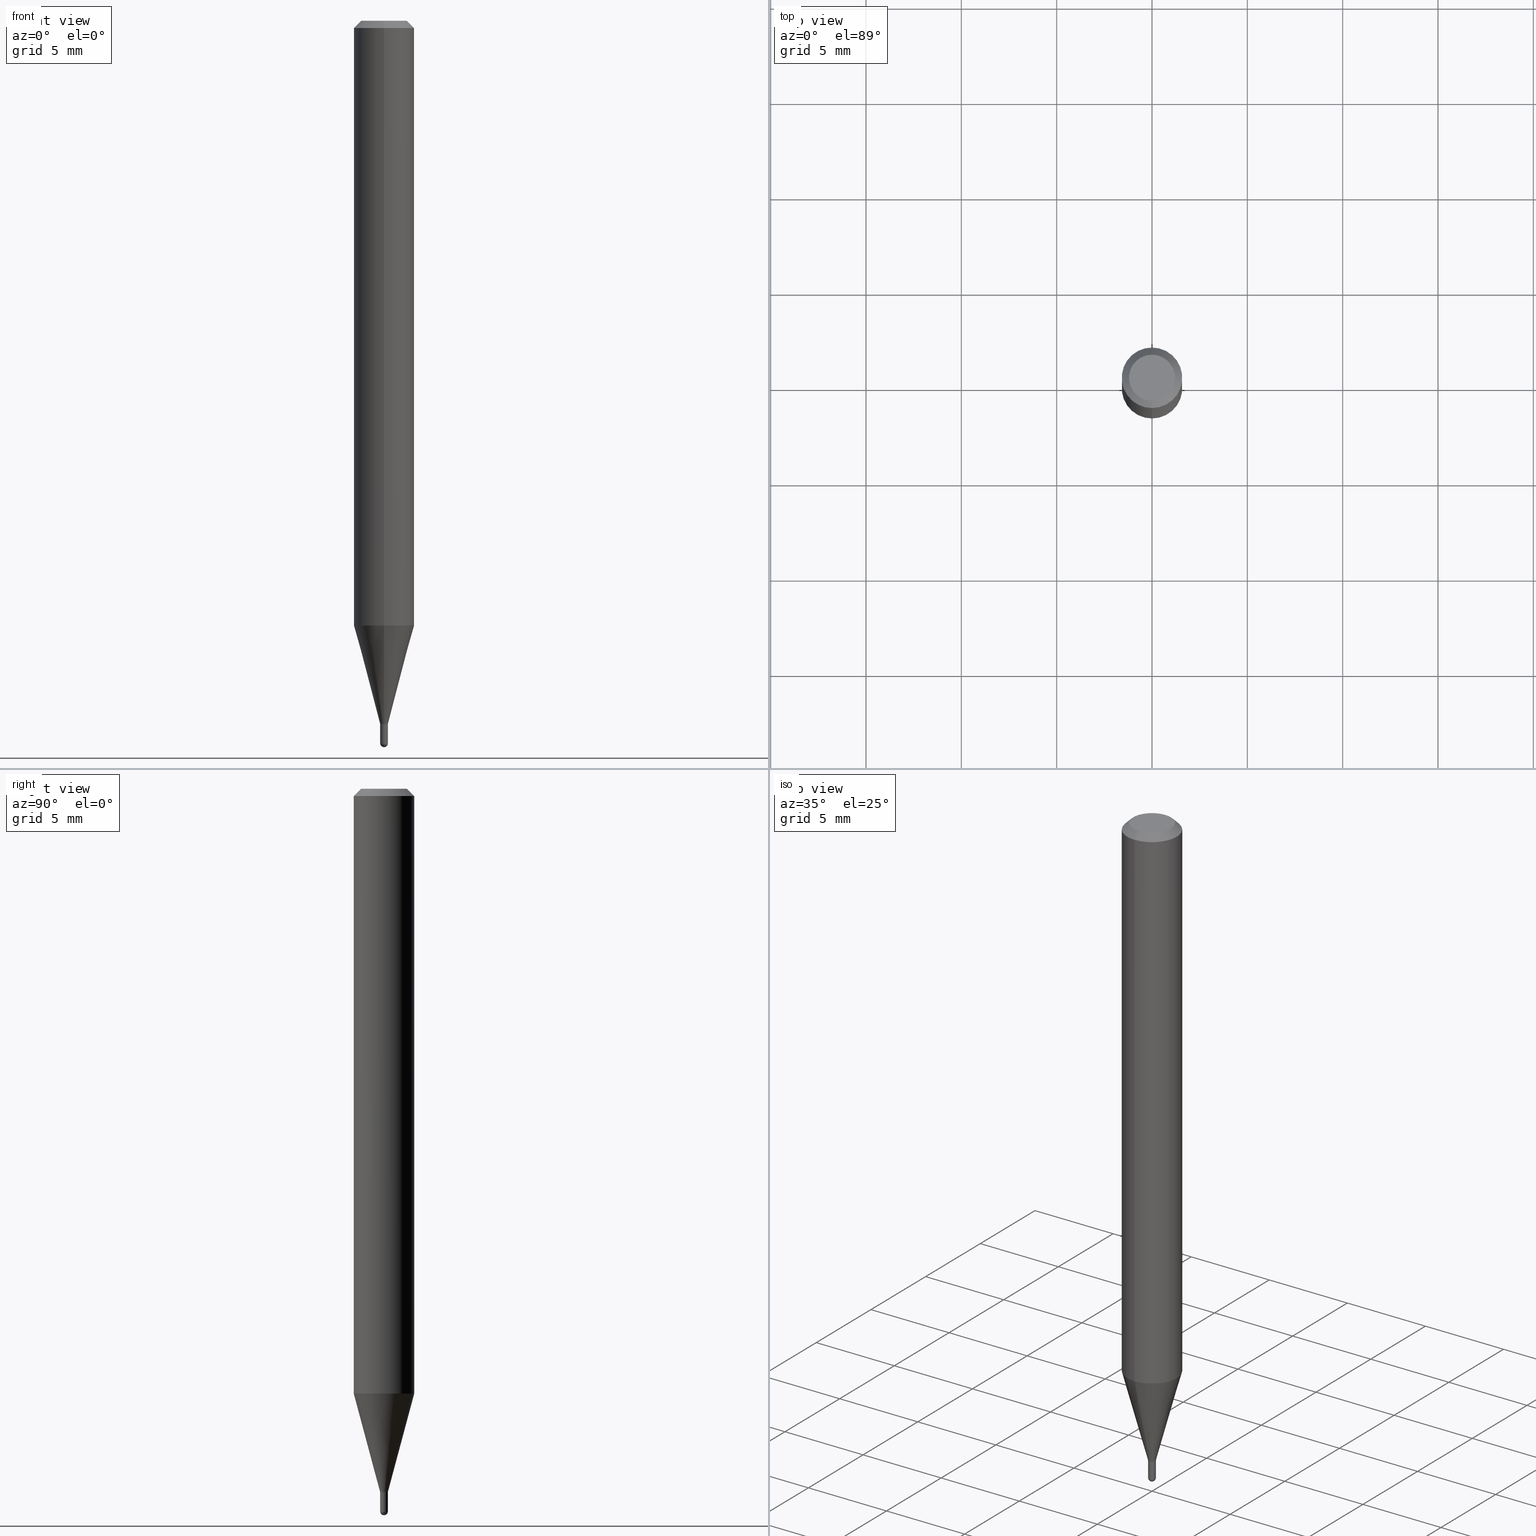
[diagram: canonical four-view strip — front | top / right | iso, engineering-drawing reading convention]
A machine part, canonical four-view strip (front | top / right | iso — engineering-drawing reading convention). The complete STEP part file that produces these views, byte-faithful:
ISO-10303-21;
HEADER;
FILE_DESCRIPTION (( 'STEP AP203' ),
    '1' );
FILE_NAME ('04394.STEP',
    '2024-03-08T19:08:10',
    ( '' ),
    ( '' ),
    'SwSTEP 2.0',
    'SolidWorks 2023',
    '' );
FILE_SCHEMA (( 'CONFIG_CONTROL_DESIGN' ));
ENDSEC;

DATA;
#1 = APPLICATION_PROTOCOL_DEFINITION ( 'international standard', 'config_control_design', 1994, #415 ) ;
#2 = DIRECTION ( 'NONE',  ( -6.982962677686266711E-15, -1.000000000000000000, 3.491497944111267737E-15 ) ) ;
#3 = LENGTH_MEASURE_WITH_UNIT ( LENGTH_MEASURE( 0.02539999999999999897 ), #319 );
#4 = CIRCLE ( 'NONE', #316, 0.008000000000000197925 ) ;
#5 = CYLINDRICAL_SURFACE ( 'NONE', #420, 0.06250000000000000000 ) ;
#6 = CC_DESIGN_APPROVAL ( #64, ( #494 ) ) ;
#7 = EDGE_CURVE ( 'NONE', #357, #36, #4, .T. ) ;
#8 = ORIENTED_EDGE ( 'NONE', *, *, #148, .F. ) ;
#9 = EDGE_LOOP ( 'NONE', ( #464, #42, #355, #246 ) ) ;
#10 = DIRECTION ( 'NONE',  ( -2.445457210788381726E-29, 3.491497944111267737E-15, 1.000000000000000000 ) ) ;
#11 = AXIS2_PLACEMENT_3D ( 'NONE', #362, #320, #483 ) ;
#12 = AXIS2_PLACEMENT_3D ( 'NONE', #393, #147, #184 ) ;
#13 = LOCAL_TIME ( 14, 8, 10.00000000000000000, #426 ) ;
#14 = CARTESIAN_POINT ( 'NONE',  ( 3.053405774632062689E-29, -4.359495614003555810E-15, -1.248603230987503920 ) ) ;
#15 = DIRECTION ( 'NONE',  ( -6.982962677686265922E-15, -1.000000000000000000, 3.491497944111267737E-15 ) ) ;
#16 = MECHANICAL_CONTEXT ( 'NONE', #398, 'mechanical' ) ;
#17 = CARTESIAN_POINT ( 'NONE',  ( 5.684341886080747371E-17, 0.007999999999999925573, -2.793198355288988207E-17 ) ) ;
#18 = ORIENTED_EDGE ( 'NONE', *, *, #430, .F. ) ;
#19 = CARTESIAN_POINT ( 'NONE',  ( 3.647955325796880596E-29, -5.210269874993290915E-15, -1.491999999999999993 ) ) ;
#20 = ORIENTED_EDGE ( 'NONE', *, *, #369, .T. ) ;
#21 = AXIS2_PLACEMENT_3D ( 'NONE', #457, #103, #422 ) ;
#22 = EDGE_CURVE ( 'NONE', #156, #403, #121, .T. ) ;
#23 = DIRECTION ( 'NONE',  ( -2.445468806185136877E-29, 3.491481338843145188E-15, 1.000000000000000000 ) ) ;
#24 = ORIENTED_EDGE ( 'NONE', *, *, #148, .T. ) ;
#25 = PERSON_AND_ORGANIZATION ( #286, #292 ) ;
#26 = DIRECTION ( 'NONE',  ( 4.937700262164548042E-15, 0.7071067811865451302, -0.7071067811865499042 ) ) ;
#27 = EDGE_CURVE ( 'NONE', #440, #78, #480, .T. ) ;
#28 = FACE_OUTER_BOUND ( 'NONE', #177, .T. ) ;
#29 = VERTEX_POINT ( 'NONE', #47 ) ;
#30 = VECTOR ( 'NONE', #85, 39.37007874015748143 ) ;
#31 = VECTOR ( 'NONE', #213, 39.37007874015748143 ) ;
#32 = DIRECTION ( 'NONE',  ( -6.982962677686265922E-15, -1.000000000000000000, 3.483106191921935554E-15 ) ) ;
#33 = ORIENTED_EDGE ( 'NONE', *, *, #92, .F. ) ;
#34 = EDGE_CURVE ( 'NONE', #36, #38, #83, .T. ) ;
#35 = CARTESIAN_POINT ( 'NONE',  ( 3.648639458828225116E-29, -5.209290157553974120E-15, -1.492000000000000437 ) ) ;
#36 = VERTEX_POINT ( 'NONE', #321 ) ;
#37 = CARTESIAN_POINT ( 'NONE',  ( -0.008000000000000000167, -5.082617111916303545E-15, -1.452000000000000179 ) ) ;
#38 = VERTEX_POINT ( 'NONE', #240 ) ;
#39 = CIRCLE ( 'NONE', #291, 0.007500000000000001457 ) ;
#40 = CARTESIAN_POINT ( 'NONE',  ( -0.008000000000000000167, -5.082617111916303545E-15, -1.492000000000000437 ) ) ;
#41 = AXIS2_PLACEMENT_3D ( 'NONE', #473, #305, #354 ) ;
#42 = ORIENTED_EDGE ( 'NONE', *, *, #280, .T. ) ;
#43 = DIRECTION ( 'NONE',  ( -6.982962677686265922E-15, -1.000000000000000000, 0.000000000000000000 ) ) ;
#44 = DIRECTION ( 'NONE',  ( -6.982962677686265922E-15, -1.000000000000000000, 3.491497944111267737E-15 ) ) ;
#45 = DATE_TIME_ROLE ( 'creation_date' ) ;
#46 = AXIS2_PLACEMENT_3D ( 'NONE', #195, #134, #275 ) ;
#47 = CARTESIAN_POINT ( 'NONE',  ( -4.364351673553612983E-16, -0.06250000000000438538, -1.248603230987503698 ) ) ;
#48 = EDGE_CURVE ( 'NONE', #429, #350, #409, .T. ) ;
#49 = ORIENTED_EDGE ( 'NONE', *, *, #363, .T. ) ;
#50 = CARTESIAN_POINT ( 'NONE',  ( 0.000000000000000000, 0.000000000000000000, 0.000000000000000000 ) ) ;
#51 = DIRECTION ( 'NONE',  ( -2.445468806185136597E-29, 3.491481338843145583E-15, 1.000000000000000000 ) ) ;
#52 = ADVANCED_FACE ( 'NONE', ( #242 ), #5, .T. ) ;
#53 = AXIS2_PLACEMENT_3D ( 'NONE', #19, #450, #250 ) ;
#54 = MANIFOLD_SOLID_BREP ( 'Body-Move/Copy2[2]', #150 ) ;
#55 = LINE ( 'NONE', #249, #383 ) ;
#56 = PERSON_AND_ORGANIZATION ( #286, #292 ) ;
#57 = CARTESIAN_POINT ( 'NONE',  ( -4.364351673553912750E-16, -0.06250000000000005551, -0.01499999999999984852 ) ) ;
#58 = ADVANCED_FACE ( 'NONE', ( #364 ), #359, .T. ) ;
#59 = MANIFOLD_SOLID_BREP ( 'Body-Move/Copy2[1]', #228 ) ;
#60 = ORIENTED_EDGE ( 'NONE', *, *, #34, .F. ) ;
#61 = VECTOR ( 'NONE', #98, 39.37007874015748143 ) ;
#62 = APPROVAL_STATUS ( 'not_yet_approved' ) ;
#63 = SECURITY_CLASSIFICATION ( '', '', #304 ) ;
#64 = APPROVAL ( #81, 'UNSPECIFIED' ) ;
#65 = CARTESIAN_POINT ( 'NONE',  ( -5.237222008261149419E-17, -0.007500000000005071187, -1.452000000000000624 ) ) ;
#66 = ORIENTED_EDGE ( 'NONE', *, *, #330, .T. ) ;
#67 = DIRECTION ( 'NONE',  ( -2.445457210788381726E-29, 3.491497944111267737E-15, 1.000000000000000000 ) ) ;
#68 = ORIENTED_EDGE ( 'NONE', *, *, #100, .T. ) ;
#69 = DIRECTION ( 'NONE',  ( -6.982962677686264344E-15, -1.000000000000000000, 0.000000000000000000 ) ) ;
#70 = ORIENTED_EDGE ( 'NONE', *, *, #76, .T. ) ;
#71 = CALENDAR_DATE ( 2024, 8, 3 ) ;
#72 = CIRCLE ( 'NONE', #324, 0.008000000000000014044 ) ;
#73 = CIRCLE ( 'NONE', #205, 0.008000000000000000167 ) ;
#74 = DIRECTION ( 'NONE',  ( -6.982962677686265922E-15, -1.000000000000000000, 3.491497944111267737E-15 ) ) ;
#75 = ORIENTED_EDGE ( 'NONE', *, *, #451, .F. ) ;
#76 = EDGE_CURVE ( 'NONE', #403, #156, #127, .T. ) ;
#77 = DIRECTION ( 'NONE',  ( -6.982962677686266711E-15, -1.000000000000000000, 0.000000000000000000 ) ) ;
#78 = VERTEX_POINT ( 'NONE', #405 ) ;
#79 = LINE ( 'NONE', #143, #105 ) ;
#80 = EDGE_LOOP ( 'NONE', ( #233, #70 ) ) ;
#81 = APPROVAL_STATUS ( 'not_yet_approved' ) ;
#82 = ORIENTED_EDGE ( 'NONE', *, *, #22, .F. ) ;
#83 = LINE ( 'NONE', #322, #30 ) ;
#84 = APPROVAL_DATE_TIME ( #478, #407 ) ;
#85 = DIRECTION ( 'NONE',  ( -2.445457210788381726E-29, 3.491497944111267737E-15, 1.000000000000000000 ) ) ;
#86 = EDGE_CURVE ( 'NONE', #311, #440, #39, .T. ) ;
#87 = DIMENSIONAL_EXPONENTS ( 1.000000000000000000, 0.000000000000000000, 0.000000000000000000, 0.000000000000000000, 0.000000000000000000, 0.000000000000000000, 0.000000000000000000 ) ;
#88 = VECTOR ( 'NONE', #302, 39.37007874015748854 ) ;
#89 = CYLINDRICAL_SURFACE ( 'NONE', #165, 0.008000000000000000167 ) ;
#90 = EDGE_CURVE ( 'NONE', #328, #171, #72, .T. ) ;
#91 = DIRECTION ( 'NONE',  ( -2.445457210788381726E-29, 3.491497944111267737E-15, 1.000000000000000000 ) ) ;
#92 = EDGE_CURVE ( 'NONE', #394, #29, #104, .T. ) ;
#93 = CARTESIAN_POINT ( 'NONE',  ( -0.008000000000000000167, 5.684341886080801605E-17, -3.935148072203924667E-31 ) ) ;
#94 = ADVANCED_FACE ( 'NONE', ( #279 ), #89, .T. ) ;
#95 = DIRECTION ( 'NONE',  ( -2.445457210788381726E-29, 3.491497944111267737E-15, 1.000000000000000000 ) ) ;
#96 = CONICAL_SURFACE ( 'NONE', #395, 0.007500000000000001457, 0.7853981633969275844 ) ;
#97 = PERSON_AND_ORGANIZATION_ROLE ( 'design_owner' ) ;
#98 = DIRECTION ( 'NONE',  ( -2.445457210788381726E-29, 3.491497944111267737E-15, 1.000000000000000000 ) ) ;
#99 = EDGE_LOOP ( 'NONE', ( #146, #502, #113, #266 ) ) ;
#100 = EDGE_CURVE ( 'NONE', #149, #209, #458, .T. ) ;
#101 = DIRECTION ( 'NONE',  ( -2.445457210788381165E-29, 3.491497944111267737E-15, 1.000000000000000000 ) ) ;
#102 = ADVANCED_FACE ( 'NONE', ( #325 ), #141, .T. ) ;
#103 = DIRECTION ( 'NONE',  ( -2.445457210788381726E-29, 3.491497944111267737E-15, 1.000000000000000000 ) ) ;
#104 = CIRCLE ( 'NONE', #272, 0.06250000000000000000 ) ;
#105 = VECTOR ( 'NONE', #118, 39.37007874015747433 ) ;
#106 = DIRECTION ( 'NONE',  ( -4.851104656540964275E-15, -0.7071067811865500152, -0.7071067811865450192 ) ) ;
#107 = ADVANCED_BREP_SHAPE_REPRESENTATION ( '04394', ( #59, #54, #273 ), #367 ) ;
#108 = FACE_OUTER_BOUND ( 'NONE', #435, .T. ) ;
#109 = ORIENTED_EDGE ( 'NONE', *, *, #178, .F. ) ;
#110 = PERSON_AND_ORGANIZATION ( #286, #292 ) ;
#111 = CARTESIAN_POINT ( 'NONE',  ( 3.668185816182588791E-31, -5.237246916166924532E-17, -0.01500000000000006710 ) ) ;
#112 = ADVANCED_FACE ( 'NONE', ( #293 ), #222, .T. ) ;
#113 = ORIENTED_EDGE ( 'NONE', *, *, #208, .T. ) ;
#114 = AXIS2_PLACEMENT_3D ( 'NONE', #207, #397, #162 ) ;
#115 = AXIS2_PLACEMENT_3D ( 'NONE', #265, #508, #77 ) ;
#116 = DIRECTION ( 'NONE',  ( -2.445457210788381726E-29, 3.491497944111267737E-15, 1.000000000000000000 ) ) ;
#117 = EDGE_LOOP ( 'NONE', ( #231, #347, #49, #33 ) ) ;
#118 = DIRECTION ( 'NONE',  ( 1.839019923739651986E-15, 0.2588190451025322303, 0.9659258262890653146 ) ) ;
#119 = ORIENTED_EDGE ( 'NONE', *, *, #215, .T. ) ;
#120 = ORIENTED_EDGE ( 'NONE', *, *, #86, .T. ) ;
#121 = CIRCLE ( 'NONE', #175, 0.04749999999999999362 ) ;
#122 = COORDINATED_UNIVERSAL_TIME_OFFSET ( 5, 0, .BEHIND. ) ;
#123 = CONICAL_SURFACE ( 'NONE', #12, 0.008000000000000197925, 0.2617993877991577345 ) ;
#124 = CARTESIAN_POINT ( 'NONE',  ( 5.329070518204302303E-17, 0.007499999999994930860, -1.452000000000000624 ) ) ;
#125 = DIRECTION ( 'NONE',  ( -2.445457210788381726E-29, 3.491497944111267737E-15, 1.000000000000000000 ) ) ;
#126 = DIRECTION ( 'NONE',  ( -6.982962677686265922E-15, -1.000000000000000000, 4.370956789862821150E-15 ) ) ;
#127 = CIRCLE ( 'NONE', #11, 0.04749999999999999362 ) ;
#128 = CIRCLE ( 'NONE', #166, 0.008000000000000000167 ) ;
#129 = CARTESIAN_POINT ( 'NONE',  ( 1.601760908168073716E-45, -2.286911786129214863E-31, -6.549944530216040568E-17 ) ) ;
#130 = CC_DESIGN_SECURITY_CLASSIFICATION ( #63, ( #494 ) ) ;
#131 = DIRECTION ( 'NONE',  ( -2.445457210788381726E-29, 3.491497944111267737E-15, 1.000000000000000000 ) ) ;
#132 = CARTESIAN_POINT ( 'NONE',  ( 0.000000000000000000, 0.000000000000000000, 0.000000000000000000 ) ) ;
#133 = DIRECTION ( 'NONE',  ( -6.982962677686265922E-15, -1.000000000000000000, 0.000000000000000000 ) ) ;
#134 = DIRECTION ( 'NONE',  ( 2.445457210788381726E-29, -3.491497944111267737E-15, -1.000000000000000000 ) ) ;
#135 = PLANE ( 'NONE',  #332 ) ;
#136 = AXIS2_PLACEMENT_3D ( 'NONE', #111, #116, #32 ) ;
#137 = CARTESIAN_POINT ( 'NONE',  ( 3.648639458828225116E-29, -5.209290157553974120E-15, -1.492000000000000437 ) ) ;
#138 = APPROVAL_DATE_TIME ( #253, #64 ) ;
#139 = DIRECTION ( 'NONE',  ( -2.445468806185136597E-29, 3.491481338843145583E-15, 1.000000000000000000 ) ) ;
#140 = CARTESIAN_POINT ( 'NONE',  ( 0.008000000000000000167, -5.195324232198600513E-15, -1.492000000000000437 ) ) ;
#141 = CONICAL_SURFACE ( 'NONE', #342, 0.007500000000000001457, 0.7853981633969275844 ) ;
#142 = CIRCLE ( 'NONE', #136, 0.06250000000000000000 ) ;
#143 = CARTESIAN_POINT ( 'NONE',  ( 5.684341886084491995E-17, 0.007999999999995127328, -1.452000000000000179 ) ) ;
#144 = ORIENTED_EDGE ( 'NONE', *, *, #509, .T. ) ;
#145 = CARTESIAN_POINT ( 'NONE',  ( -3.773273898774340269E-16, -0.04749999999999999362, 1.003467070431247921E-16 ) ) ;
#146 = ORIENTED_EDGE ( 'NONE', *, *, #505, .F. ) ;
#147 = DIRECTION ( 'NONE',  ( -2.445457210788381726E-29, 3.491497944111267737E-15, 1.000000000000000000 ) ) ;
#148 = EDGE_CURVE ( 'NONE', #156, #209, #378, .T. ) ;
#149 = VERTEX_POINT ( 'NONE', #57 ) ;
#150 = CLOSED_SHELL ( 'NONE', ( #477, #102, #401, #442, #381, #433, #52, #462, #182, #243, #267, #333 ) ) ;
#151 = AXIS2_PLACEMENT_3D ( 'NONE', #460, #226, #349 ) ;
#152 = FACE_OUTER_BOUND ( 'NONE', #491, .T. ) ;
#153 = ORIENTED_EDGE ( 'NONE', *, *, #308, .T. ) ;
#154 = CC_DESIGN_DATE_AND_TIME_ASSIGNMENT ( #270, #45, ( #386 ) ) ;
#155 = DIRECTION ( 'NONE',  ( -2.445457210788381726E-29, 3.491497944111267737E-15, 1.000000000000000000 ) ) ;
#156 = VERTEX_POINT ( 'NONE', #255 ) ;
#157 = COORDINATED_UNIVERSAL_TIME_OFFSET ( 5, 0, .BEHIND. ) ;
#158 = DIRECTION ( 'NONE',  ( 1.000000000000000000, -6.982962677686211490E-15, 0.000000000000000000 ) ) ;
#159 = CIRCLE ( 'NONE', #411, 0.008000000000000000167 ) ;
#160 =( NAMED_UNIT ( * ) SI_UNIT ( $, .STERADIAN. ) SOLID_ANGLE_UNIT ( ) );
#161 = AXIS2_PLACEMENT_3D ( 'NONE', #35, #511, #225 ) ;
#162 = DIRECTION ( 'NONE',  ( -6.982962677686265922E-15, -1.000000000000000000, 0.000000000000000000 ) ) ;
#163 = DIRECTION ( 'NONE',  ( -2.445457210788381726E-29, 3.491497944111267737E-15, 1.000000000000000000 ) ) ;
#164 = ORIENTED_EDGE ( 'NONE', *, *, #218, .F. ) ;
#165 = AXIS2_PLACEMENT_3D ( 'NONE', #50, #278, #212 ) ;
#166 = AXIS2_PLACEMENT_3D ( 'NONE', #219, #139, #299 ) ;
#167 = DIRECTION ( 'NONE',  ( -6.982962677686265922E-15, -1.000000000000000000, 3.483106191921935554E-15 ) ) ;
#168 = LOCAL_TIME ( 14, 8, 10.00000000000000000, #496 ) ;
#169 = EDGE_CURVE ( 'NONE', #313, #350, #55, .T. ) ;
#170 = DIRECTION ( 'NONE',  ( -2.445457210788381726E-29, 3.491497944111267737E-15, 1.000000000000000000 ) ) ;
#171 = VERTEX_POINT ( 'NONE', #495 ) ;
#172 = DIRECTION ( 'NONE',  ( 0.000000000000000000, 0.000000000000000000, 1.000000000000000000 ) ) ;
#173 = DIRECTION ( 'NONE',  ( -2.445457210788381726E-29, 3.491497944111267737E-15, 1.000000000000000000 ) ) ;
#174 = LINE ( 'NONE', #17, #188 ) ;
#175 = AXIS2_PLACEMENT_3D ( 'NONE', #129, #131, #2 ) ;
#176 = CIRCLE ( 'NONE', #21, 0.007999999999999653222 ) ;
#177 = EDGE_LOOP ( 'NONE', ( #289, #385, #68, #8 ) ) ;
#178 = EDGE_CURVE ( 'NONE', #388, #171, #159, .T. ) ;
#179 = CARTESIAN_POINT ( 'NONE',  ( -4.364351673553916201E-16, -0.06250000000000000000, 2.182186215069542336E-16 ) ) ;
#180 = CARTESIAN_POINT ( 'NONE',  ( 3.550803870064730798E-29, -5.069655014849561599E-15, -1.452000000000000179 ) ) ;
#181 = DESIGN_CONTEXT ( 'detailed design', #415, 'design' ) ;
#182 = ADVANCED_FACE ( 'NONE', ( #499 ), #135, .F. ) ;
#183 = DATE_AND_TIME ( #465, #168 ) ;
#184 = DIRECTION ( 'NONE',  ( -6.982962677686266711E-15, -1.000000000000000000, 0.000000000000000000 ) ) ;
#185 = ORIENTED_EDGE ( 'NONE', *, *, #90, .F. ) ;
#186 = VECTOR ( 'NONE', #26, 39.37007874015748143 ) ;
#187 = ADVANCED_FACE ( 'NONE', ( #373 ), #288, .T. ) ;
#188 = VECTOR ( 'NONE', #490, 39.37007874015748143 ) ;
#189 = LOCAL_TIME ( 14, 8, 10.00000000000000000, #157 ) ;
#190 = CARTESIAN_POINT ( 'NONE',  ( 3.550820706580818935E-29, -5.069630904000248312E-15, -1.452000000000000179 ) ) ;
#191 = ORIENTED_EDGE ( 'NONE', *, *, #169, .T. ) ;
#192 = CARTESIAN_POINT ( 'NONE',  ( 2.504663143554691632E-16, 0.007999999999995127328, -1.452000000000000179 ) ) ;
#193 = ORIENTED_EDGE ( 'NONE', *, *, #308, .F. ) ;
#194 = CC_DESIGN_PERSON_AND_ORGANIZATION_ASSIGNMENT ( #456, #338, ( #63 ) ) ;
#195 = CARTESIAN_POINT ( 'NONE',  ( 3.668185816182588791E-31, -5.237246916166924532E-17, -0.01500000000000006710 ) ) ;
#196 = VERTEX_POINT ( 'NONE', #300 ) ;
#197 = VECTOR ( 'NONE', #200, 39.37007874015748143 ) ;
#198 = DIRECTION ( 'NONE',  ( -2.445468806185136597E-29, 3.491481338843145583E-15, 1.000000000000000000 ) ) ;
#199 = EDGE_LOOP ( 'NONE', ( #120, #251, #193, #294 ) ) ;
#200 = DIRECTION ( 'NONE',  ( -2.445457210788381726E-29, 3.491497944111267737E-15, 1.000000000000000000 ) ) ;
#201 = CARTESIAN_POINT ( 'NONE',  ( 0.000000000000000000, 0.000000000000000000, 0.000000000000000000 ) ) ;
#202 = DIRECTION ( 'NONE',  ( -2.445457210788381726E-29, 3.491497944111267737E-15, 1.000000000000000000 ) ) ;
#203 = ORIENTED_EDGE ( 'NONE', *, *, #330, .F. ) ;
#204 = CC_DESIGN_DATE_AND_TIME_ASSIGNMENT ( #183, #261, ( #63 ) ) ;
#205 = AXIS2_PLACEMENT_3D ( 'NONE', #230, #198, #307 ) ;
#206 = CALENDAR_DATE ( 2024, 8, 3 ) ;
#207 = CARTESIAN_POINT ( 'NONE',  ( 3.647955325796880596E-29, -5.210269874993290915E-15, -1.491999999999999993 ) ) ;
#208 = EDGE_CURVE ( 'NONE', #29, #149, #408, .T. ) ;
#209 = VERTEX_POINT ( 'NONE', #446 ) ;
#210 = PRODUCT ( '04394', '04394', '', ( #16 ) ) ;
#211 = CC_DESIGN_PERSON_AND_ORGANIZATION_ASSIGNMENT ( #402, #97, ( #210 ) ) ;
#212 = DIRECTION ( 'NONE',  ( 1.000000000000000000, -6.982962677686266711E-15, 4.876176775795935793E-29 ) ) ;
#213 = DIRECTION ( 'NONE',  ( -2.445468806185136877E-29, 3.491481338843145188E-15, 1.000000000000000000 ) ) ;
#214 = CARTESIAN_POINT ( 'NONE',  ( 3.316907271900976096E-16, 0.04749999999999999362, -1.985958749963654130E-16 ) ) ;
#215 = EDGE_CURVE ( 'NONE', #357, #78, #174, .T. ) ;
#216 = FACE_OUTER_BOUND ( 'NONE', #221, .T. ) ;
#217 = FACE_OUTER_BOUND ( 'NONE', #512, .T. ) ;
#218 = EDGE_CURVE ( 'NONE', #388, #429, #412, .T. ) ;
#219 = CARTESIAN_POINT ( 'NONE',  ( 3.648639458828225116E-29, -5.209290157553974120E-15, -1.492000000000000437 ) ) ;
#220 = CIRCLE ( 'NONE', #361, 0.008000000000000000167 ) ;
#221 = EDGE_LOOP ( 'NONE', ( #297, #119, #20, #60 ) ) ;
#222 = CYLINDRICAL_SURFACE ( 'NONE', #479, 0.008000000000000000167 ) ;
#223 = ORIENTED_EDGE ( 'NONE', *, *, #484, .F. ) ;
#224 = APPROVAL_ROLE ( '' ) ;
#225 = DIRECTION ( 'NONE',  ( 1.000000000000000000, -6.982962677686211490E-15, 0.000000000000000000 ) ) ;
#226 = DIRECTION ( 'NONE',  ( 2.445457210788381726E-29, -3.491497944111267737E-15, -1.000000000000000000 ) ) ;
#227 = EDGE_LOOP ( 'NONE', ( #185, #374, #75, #271 ) ) ;
#228 = CLOSED_SHELL ( 'NONE', ( #94, #187, #314, #58, #112 ) ) ;
#229 = VECTOR ( 'NONE', #463, 39.37007874015748143 ) ;
#230 = CARTESIAN_POINT ( 'NONE',  ( 3.648639458828225116E-29, -5.209290157553974120E-15, -1.492000000000000437 ) ) ;
#231 = ORIENTED_EDGE ( 'NONE', *, *, #323, .F. ) ;
#232 = CARTESIAN_POINT ( 'NONE',  ( 4.440892098500930859E-16, 0.06249999999999564237, -1.248603230987504142 ) ) ;
#233 = ORIENTED_EDGE ( 'NONE', *, *, #22, .T. ) ;
#234 = CARTESIAN_POINT ( 'NONE',  ( 0.000000000000000000, 0.000000000000000000, 0.000000000000000000 ) ) ;
#235 = EDGE_LOOP ( 'NONE', ( #164, #425, #447, #191, #263 ) ) ;
#236 = AXIS2_PLACEMENT_3D ( 'NONE', #365, #10, #167 ) ;
#237 = VECTOR ( 'NONE', #106, 39.37007874015748143 ) ;
#238 = DIRECTION ( 'NONE',  ( 5.024295867785445738E-15, 0.7071067811861817543, 0.7071067811869132802 ) ) ;
#239 = DIRECTION ( 'NONE',  ( 1.000000000000000000, -7.105427357601001070E-15, 4.926315508542082329E-29 ) ) ;
#240 = CARTESIAN_POINT ( 'NONE',  ( -5.586370142145238127E-17, -0.008000000000004746370, -1.451500000000000457 ) ) ;
#241 = LINE ( 'NONE', #448, #197 ) ;
#242 = FACE_OUTER_BOUND ( 'NONE', #99, .T. ) ;
#243 = ADVANCED_FACE ( 'NONE', ( #217 ), #336, .F. ) ;
#244 = AXIS2_PLACEMENT_3D ( 'NONE', #254, #416, #327 ) ;
#245 = APPROVAL_PERSON_ORGANIZATION ( #25, #472, #224 ) ;
#246 = ORIENTED_EDGE ( 'NONE', *, *, #369, .F. ) ;
#247 = EDGE_CURVE ( 'NONE', #36, #357, #301, .T. ) ;
#248 = EDGE_LOOP ( 'NONE', ( #507, #452, #467, #260 ) ) ;
#249 = CARTESIAN_POINT ( 'NONE',  ( 0.008000000000000000167, -5.586370142149013566E-17, 3.900941420636748599E-31 ) ) ;
#250 = DIRECTION ( 'NONE',  ( -6.982962677686265922E-15, -1.000000000000000000, 0.000000000000000000 ) ) ;
#251 = ORIENTED_EDGE ( 'NONE', *, *, #27, .T. ) ;
#252 = DIRECTION ( 'NONE',  ( -6.982962677686266711E-15, -1.000000000000000000, 0.000000000000000000 ) ) ;
#253 = DATE_AND_TIME ( #366, #345 ) ;
#254 = CARTESIAN_POINT ( 'NONE',  ( 3.550803870064731359E-29, -5.069655014849563176E-15, -1.452000000000000624 ) ) ;
#255 = CARTESIAN_POINT ( 'NONE',  ( 3.840629472727447874E-16, 0.04749999999999999362, -2.313455976474456528E-16 ) ) ;
#256 = CIRCLE ( 'NONE', #449, 0.06250000000000000000 ) ;
#257 = CC_DESIGN_APPROVAL ( #407, ( #386 ) ) ;
#258 = CARTESIAN_POINT ( 'NONE',  ( -4.287811248607203282E-16, -0.06250000000000005551, -0.01499999999999984852 ) ) ;
#259 = LINE ( 'NONE', #379, #88 ) ;
#260 = ORIENTED_EDGE ( 'NONE', *, *, #363, .F. ) ;
#261 = DATE_TIME_ROLE ( 'classification_date' ) ;
#262 = CARTESIAN_POINT ( 'NONE',  ( 3.549581141459337192E-29, -5.067909265877506074E-15, -1.451500000000000457 ) ) ;
#263 = ORIENTED_EDGE ( 'NONE', *, *, #48, .F. ) ;
#264 = CONICAL_SURFACE ( 'NONE', #46, 0.06250000000000000000, 0.7853981633974483900 ) ;
#265 = CARTESIAN_POINT ( 'NONE',  ( 3.550803870064730798E-29, -5.069655014849561599E-15, -1.452000000000000179 ) ) ;
#266 = ORIENTED_EDGE ( 'NONE', *, *, #356, .F. ) ;
#267 = ADVANCED_FACE ( 'NONE', ( #331 ), #96, .T. ) ;
#268 = CYLINDRICAL_SURFACE ( 'NONE', #459, 0.007999999999999925573 ) ;
#269 = ORIENTED_EDGE ( 'NONE', *, *, #34, .T. ) ;
#270 = DATE_AND_TIME ( #372, #470 ) ;
#271 = ORIENTED_EDGE ( 'NONE', *, *, #337, .F. ) ;
#272 = AXIS2_PLACEMENT_3D ( 'NONE', #400, #125, #126 ) ;
#273 = AXIS2_PLACEMENT_3D ( 'NONE', #492, #172, #358 ) ;
#274 = APPROVAL_PERSON_ORGANIZATION ( #326, #407, #315 ) ;
#275 = DIRECTION ( 'NONE',  ( 6.982962677686265922E-15, 1.000000000000000000, -3.483106191921935554E-15 ) ) ;
#276 = CARTESIAN_POINT ( 'NONE',  ( 3.647955325796880596E-29, -5.210269874993290915E-15, -1.491999999999999993 ) ) ;
#277 = DIRECTION ( 'NONE',  ( 7.105427357601000281E-15, 1.000000000000000000, 0.000000000000000000 ) ) ;
#278 = DIRECTION ( 'NONE',  ( -2.445468806185136597E-29, 3.491481338843145583E-15, 1.000000000000000000 ) ) ;
#279 = FACE_OUTER_BOUND ( 'NONE', #510, .T. ) ;
#280 = EDGE_CURVE ( 'NONE', #440, #311, #404, .T. ) ;
#281 = VECTOR ( 'NONE', #238, 39.37007874015748143 ) ;
#282 = AXIS2_PLACEMENT_3D ( 'NONE', #132, #370, #285 ) ;
#283 = CARTESIAN_POINT ( 'NONE',  ( 3.550820706580818935E-29, -5.069630904000248312E-15, -1.452000000000000179 ) ) ;
#284 = DIRECTION ( 'NONE',  ( -2.445468806185136597E-29, 3.491481338843145583E-15, 1.000000000000000000 ) ) ;
#285 = DIRECTION ( 'NONE',  ( -6.982962677686265922E-15, -1.000000000000000000, 3.491497944111267737E-15 ) ) ;
#286 = PERSON ( 'UNSPECIFIED', 'UNSPECIFIED', 'UNSPECIFIED', ('UNSPECIFIED'), ('UNSPECIFIED'), ('UNSPECIFIED') ) ;
#287 = PRODUCT_DEFINITION_SHAPE ( 'NONE', 'NONE',  #386 ) ;
#288 = SPHERICAL_SURFACE ( 'NONE', #53, 0.008000000000000014044 ) ;
#289 = ORIENTED_EDGE ( 'NONE', *, *, #76, .F. ) ;
#290 = PERSON_AND_ORGANIZATION_ROLE ( 'creator' ) ;
#291 = AXIS2_PLACEMENT_3D ( 'NONE', #443, #91, #43 ) ;
#292 = ORGANIZATION ( 'UNSPECIFIED', 'UNSPECIFIED', '' ) ;
#293 = FACE_OUTER_BOUND ( 'NONE', #235, .T. ) ;
#294 = ORIENTED_EDGE ( 'NONE', *, *, #389, .F. ) ;
#295 = DATE_AND_TIME ( #71, #13 ) ;
#296 = CARTESIAN_POINT ( 'NONE',  ( 4.364351673553919652E-16, 0.06249999999999995143, -0.01500000000000028394 ) ) ;
#297 = ORIENTED_EDGE ( 'NONE', *, *, #7, .F. ) ;
#298 = EDGE_CURVE ( 'NONE', #196, #388, #128, .T. ) ;
#299 = DIRECTION ( 'NONE',  ( 1.000000000000000000, -6.982962677686211490E-15, 0.000000000000000000 ) ) ;
#300 = CARTESIAN_POINT ( 'NONE',  ( 5.684341886084453785E-17, 0.007999999999994797731, -1.492000000000000437 ) ) ;
#301 = CIRCLE ( 'NONE', #487, 0.008000000000000197925 ) ;
#302 = DIRECTION ( 'NONE',  ( -1.807323732225380626E-15, -0.2588190451025254024, 0.9659258262890669799 ) ) ;
#303 = ORIENTED_EDGE ( 'NONE', *, *, #100, .F. ) ;
#304 = SECURITY_CLASSIFICATION_LEVEL ( 'unclassified' ) ;
#305 = DIRECTION ( 'NONE',  ( 2.438088387897960049E-29, -3.491481338843145188E-15, -1.000000000000000000 ) ) ;
#306 = ORIENTED_EDGE ( 'NONE', *, *, #298, .T. ) ;
#307 = DIRECTION ( 'NONE',  ( 1.000000000000000000, -6.982962677686211490E-15, 0.000000000000000000 ) ) ;
#308 = EDGE_CURVE ( 'NONE', #38, #78, #176, .T. ) ;
#309 = ORIENTED_EDGE ( 'NONE', *, *, #505, .T. ) ;
#310 = CYLINDRICAL_SURFACE ( 'NONE', #441, 0.06250000000000000000 ) ;
#311 = VERTEX_POINT ( 'NONE', #65 ) ;
#312 = APPROVAL_STATUS ( 'not_yet_approved' ) ;
#313 = VERTEX_POINT ( 'NONE', #140 ) ;
#314 = ADVANCED_FACE ( 'NONE', ( #434 ), #431, .F. ) ;
#315 = APPROVAL_ROLE ( '' ) ;
#316 = AXIS2_PLACEMENT_3D ( 'NONE', #438, #163, #439 ) ;
#317 = CONICAL_SURFACE ( 'NONE', #151, 0.06250000000000000000, 0.7853981633974483900 ) ;
#318 = CC_DESIGN_APPROVAL ( #472, ( #63 ) ) ;
#319 =( LENGTH_UNIT ( ) NAMED_UNIT ( * ) SI_UNIT ( $, .METRE. ) );
#320 = DIRECTION ( 'NONE',  ( -2.445457210788381726E-29, 3.491497944111267737E-15, 1.000000000000000000 ) ) ;
#321 = CARTESIAN_POINT ( 'NONE',  ( -5.586370142145600510E-17, -0.008000000000005268522, -1.452000000000000179 ) ) ;
#322 = CARTESIAN_POINT ( 'NONE',  ( -5.586370142148960564E-17, -0.007999999999999925573, 2.793198355288988207E-17 ) ) ;
#323 = EDGE_CURVE ( 'NONE', #357, #394, #79, .T. ) ;
#324 = AXIS2_PLACEMENT_3D ( 'NONE', #276, #482, #406 ) ;
#325 = FACE_OUTER_BOUND ( 'NONE', #199, .T. ) ;
#326 = PERSON_AND_ORGANIZATION ( #286, #292 ) ;
#327 = DIRECTION ( 'NONE',  ( -6.982962677686265922E-15, -1.000000000000000000, 0.000000000000000000 ) ) ;
#328 = VERTEX_POINT ( 'NONE', #387 ) ;
#329 = PERSON_AND_ORGANIZATION ( #286, #292 ) ;
#330 = EDGE_CURVE ( 'NONE', #350, #429, #220, .T. ) ;
#331 = FACE_OUTER_BOUND ( 'NONE', #9, .T. ) ;
#332 = AXIS2_PLACEMENT_3D ( 'NONE', #214, #454, #493 ) ;
#333 = ADVANCED_FACE ( 'NONE', ( #108 ), #268, .F. ) ;
#334 = DIRECTION ( 'NONE',  ( -6.982962677686265922E-15, -1.000000000000000000, 0.000000000000000000 ) ) ;
#335 = PERSON_AND_ORGANIZATION ( #286, #292 ) ;
#336 = PLANE ( 'NONE',  #343 ) ;
#337 = EDGE_CURVE ( 'NONE', #171, #313, #428, .T. ) ;
#338 = PERSON_AND_ORGANIZATION_ROLE ( 'classification_officer' ) ;
#339 = CARTESIAN_POINT ( 'NONE',  ( 3.550803870064731359E-29, -5.069655014849563176E-15, -1.452000000000000624 ) ) ;
#340 = PERSON_AND_ORGANIZATION_ROLE ( 'creator' ) ;
#341 = DIRECTION ( 'NONE',  ( -2.445457210788381726E-29, 3.491497944111267737E-15, 1.000000000000000000 ) ) ;
#342 = AXIS2_PLACEMENT_3D ( 'NONE', #488, #95, #133 ) ;
#343 = AXIS2_PLACEMENT_3D ( 'NONE', #180, #101, #15 ) ;
#344 = ORIENTED_EDGE ( 'NONE', *, *, #280, .F. ) ;
#345 = LOCAL_TIME ( 14, 8, 10.00000000000000000, #122 ) ;
#346 = LINE ( 'NONE', #258, #237 ) ;
#347 = ORIENTED_EDGE ( 'NONE', *, *, #7, .T. ) ;
#348 = PRODUCT_RELATED_PRODUCT_CATEGORY ( 'detail', '', ( #210 ) ) ;
#349 = DIRECTION ( 'NONE',  ( 6.982962677686265922E-15, 1.000000000000000000, -3.483106191921935554E-15 ) ) ;
#350 = VERTEX_POINT ( 'NONE', #469 ) ;
#351 = CARTESIAN_POINT ( 'NONE',  ( 0.000000000000000000, 0.000000000000000000, 0.000000000000000000 ) ) ;
#352 = ORIENTED_EDGE ( 'NONE', *, *, #48, .T. ) ;
#353 = APPROVAL_PERSON_ORGANIZATION ( #56, #64, #399 ) ;
#354 = DIRECTION ( 'NONE',  ( -1.000000000000000000, 6.982962677686265922E-15, -4.876176775795935793E-29 ) ) ;
#355 = ORIENTED_EDGE ( 'NONE', *, *, #389, .T. ) ;
#356 = EDGE_CURVE ( 'NONE', #209, #149, #142, .T. ) ;
#357 = VERTEX_POINT ( 'NONE', #192 ) ;
#358 = DIRECTION ( 'NONE',  ( 1.000000000000000000, 0.000000000000000000, 0.000000000000000000 ) ) ;
#359 = SPHERICAL_SURFACE ( 'NONE', #114, 0.008000000000000014044 ) ;
#360 = AXIS2_PLACEMENT_3D ( 'NONE', #262, #155, #69 ) ;
#361 = AXIS2_PLACEMENT_3D ( 'NONE', #190, #466, #424 ) ;
#362 = CARTESIAN_POINT ( 'NONE',  ( 1.601760908168073716E-45, -2.286911786129214863E-31, -6.549944530216040568E-17 ) ) ;
#363 = EDGE_CURVE ( 'NONE', #36, #29, #259, .T. ) ;
#364 = FACE_OUTER_BOUND ( 'NONE', #476, .T. ) ;
#365 = CARTESIAN_POINT ( 'NONE',  ( 3.668185816182588791E-31, -5.237246916166924532E-17, -0.01500000000000006710 ) ) ;
#366 = CALENDAR_DATE ( 2024, 8, 3 ) ;
#367 =( GEOMETRIC_REPRESENTATION_CONTEXT ( 3 ) GLOBAL_UNCERTAINTY_ASSIGNED_CONTEXT ( ( #417 ) ) GLOBAL_UNIT_ASSIGNED_CONTEXT ( ( #475, #396, #160 ) ) REPRESENTATION_CONTEXT ( 'NONE', 'WORKASPACE' ) );
#368 = DIRECTION ( 'NONE',  ( 1.000000000000000000, -6.982962677686211490E-15, 0.000000000000000000 ) ) ;
#369 = EDGE_CURVE ( 'NONE', #78, #38, #375, .T. ) ;
#370 = DIRECTION ( 'NONE',  ( -2.445457210788381726E-29, 3.491497944111267737E-15, 1.000000000000000000 ) ) ;
#371 = CARTESIAN_POINT ( 'NONE',  ( 0.000000000000000000, 0.000000000000000000, 0.000000000000000000 ) ) ;
#372 = CALENDAR_DATE ( 2024, 8, 3 ) ;
#373 = FACE_OUTER_BOUND ( 'NONE', #227, .T. ) ;
#374 = ORIENTED_EDGE ( 'NONE', *, *, #484, .T. ) ;
#375 = CIRCLE ( 'NONE', #360, 0.007999999999999653222 ) ;
#376 = DIRECTION ( 'NONE',  ( 1.000000000000000000, -6.982962677686266711E-15, 4.876176775795935793E-29 ) ) ;
#377 = EDGE_LOOP ( 'NONE', ( #18, #82, #24, #474 ) ) ;
#378 = LINE ( 'NONE', #296, #186 ) ;
#379 = CARTESIAN_POINT ( 'NONE',  ( -5.586370142145600510E-17, -0.008000000000005268522, -1.452000000000000179 ) ) ;
#380 = ORIENTED_EDGE ( 'NONE', *, *, #90, .T. ) ;
#381 = ADVANCED_FACE ( 'NONE', ( #506 ), #437, .T. ) ;
#382 = LINE ( 'NONE', #503, #229 ) ;
#383 = VECTOR ( 'NONE', #23, 39.37007874015748143 ) ;
#384 = AXIS2_PLACEMENT_3D ( 'NONE', #410, #239, #277 ) ;
#385 = ORIENTED_EDGE ( 'NONE', *, *, #430, .T. ) ;
#386 = PRODUCT_DEFINITION ( 'UNKNOWN', '', #494, #181 ) ;
#387 = CARTESIAN_POINT ( 'NONE',  ( 3.667177009730690077E-29, -5.238691584423694948E-15, -1.500000000000000222 ) ) ;
#388 = VERTEX_POINT ( 'NONE', #40 ) ;
#389 = EDGE_CURVE ( 'NONE', #311, #38, #382, .T. ) ;
#390 = FACE_OUTER_BOUND ( 'NONE', #377, .T. ) ;
#391 = ORIENTED_EDGE ( 'NONE', *, *, #169, .F. ) ;
#392 = CC_DESIGN_PERSON_AND_ORGANIZATION_ASSIGNMENT ( #335, #500, ( #494 ) ) ;
#393 = CARTESIAN_POINT ( 'NONE',  ( 3.550803870064730798E-29, -5.069655014849561599E-15, -1.452000000000000179 ) ) ;
#394 = VERTEX_POINT ( 'NONE', #232 ) ;
#395 = AXIS2_PLACEMENT_3D ( 'NONE', #339, #170, #334 ) ;
#396 =( NAMED_UNIT ( * ) PLANE_ANGLE_UNIT ( ) SI_UNIT ( $, .RADIAN. ) );
#397 = DIRECTION ( 'NONE',  ( 1.000000000000000000, -6.982962677686265922E-15, 4.883557194083112340E-29 ) ) ;
#398 = APPLICATION_CONTEXT ( 'configuration controlled 3d designs of mechanical parts and assemblies' ) ;
#399 = APPROVAL_ROLE ( '' ) ;
#400 = CARTESIAN_POINT ( 'NONE',  ( 3.053405774632062689E-29, -4.359495614003555810E-15, -1.248603230987503920 ) ) ;
#401 = ADVANCED_FACE ( 'NONE', ( #28 ), #317, .T. ) ;
#402 = PERSON_AND_ORGANIZATION ( #286, #292 ) ;
#403 = VERTEX_POINT ( 'NONE', #145 ) ;
#404 = CIRCLE ( 'NONE', #244, 0.007500000000000001457 ) ;
#405 = CARTESIAN_POINT ( 'NONE',  ( 5.684341886084085239E-17, 0.007999999999994558339, -1.451500000000000457 ) ) ;
#406 = DIRECTION ( 'NONE',  ( -6.982962677686265133E-15, -1.000000000000000000, 0.000000000000000000 ) ) ;
#407 = APPROVAL ( #312, 'UNSPECIFIED' ) ;
#408 = LINE ( 'NONE', #179, #61 ) ;
#409 = CIRCLE ( 'NONE', #468, 0.008000000000000000167 ) ;
#410 = CARTESIAN_POINT ( 'NONE',  ( 3.647955325796880596E-29, -5.210269874993290915E-15, -1.491999999999999993 ) ) ;
#411 = AXIS2_PLACEMENT_3D ( 'NONE', #137, #414, #368 ) ;
#412 = LINE ( 'NONE', #93, #31 ) ;
#413 = COORDINATED_UNIVERSAL_TIME_OFFSET ( 5, 0, .BEHIND. ) ;
#414 = DIRECTION ( 'NONE',  ( -2.445468806185136597E-29, 3.491481338843145583E-15, 1.000000000000000000 ) ) ;
#415 = APPLICATION_CONTEXT ( 'configuration controlled 3d designs of mechanical parts and assemblies' ) ;
#416 = DIRECTION ( 'NONE',  ( -2.445457210788381726E-29, 3.491497944111267737E-15, 1.000000000000000000 ) ) ;
#417 = UNCERTAINTY_MEASURE_WITH_UNIT (LENGTH_MEASURE( 1.000000000000000082E-05 ), #475, 'distance_accuracy_value', 'NONE');
#418 = EDGE_LOOP ( 'NONE', ( #66, #352 ) ) ;
#419 = CC_DESIGN_PERSON_AND_ORGANIZATION_ASSIGNMENT ( #329, #290, ( #386 ) ) ;
#420 = AXIS2_PLACEMENT_3D ( 'NONE', #201, #485, #44 ) ;
#421 = CIRCLE ( 'NONE', #384, 0.008000000000000014044 ) ;
#422 = DIRECTION ( 'NONE',  ( -6.982962677686264344E-15, -1.000000000000000000, 0.000000000000000000 ) ) ;
#423 = FACE_OUTER_BOUND ( 'NONE', #117, .T. ) ;
#424 = DIRECTION ( 'NONE',  ( 1.000000000000000000, -6.982962677686211490E-15, 0.000000000000000000 ) ) ;
#425 = ORIENTED_EDGE ( 'NONE', *, *, #178, .T. ) ;
#426 = COORDINATED_UNIVERSAL_TIME_OFFSET ( 5, 0, .BEHIND. ) ;
#427 = CARTESIAN_POINT ( 'NONE',  ( 5.506706202144193771E-17, 0.007499999999994929993, -1.452000000000000624 ) ) ;
#428 = CIRCLE ( 'NONE', #161, 0.008000000000000000167 ) ;
#429 = VERTEX_POINT ( 'NONE', #37 ) ;
#430 = EDGE_CURVE ( 'NONE', #403, #149, #346, .T. ) ;
#431 = PLANE ( 'NONE',  #41 ) ;
#432 = ORIENTED_EDGE ( 'NONE', *, *, #247, .F. ) ;
#433 = ADVANCED_FACE ( 'NONE', ( #423 ), #123, .T. ) ;
#434 = FACE_OUTER_BOUND ( 'NONE', #418, .T. ) ;
#435 = EDGE_LOOP ( 'NONE', ( #444, #432, #269, #153 ) ) ;
#436 = ORIENTED_EDGE ( 'NONE', *, *, #298, .F. ) ;
#437 = CONICAL_SURFACE ( 'NONE', #115, 0.008000000000000197925, 0.2617993877991577345 ) ;
#438 = CARTESIAN_POINT ( 'NONE',  ( 3.550803870064730798E-29, -5.069655014849561599E-15, -1.452000000000000179 ) ) ;
#439 = DIRECTION ( 'NONE',  ( -6.982962677686266711E-15, -1.000000000000000000, 0.000000000000000000 ) ) ;
#440 = VERTEX_POINT ( 'NONE', #427 ) ;
#441 = AXIS2_PLACEMENT_3D ( 'NONE', #351, #341, #74 ) ;
#442 = ADVANCED_FACE ( 'NONE', ( #152 ), #310, .T. ) ;
#443 = CARTESIAN_POINT ( 'NONE',  ( 3.550803870064731359E-29, -5.069655014849563176E-15, -1.452000000000000624 ) ) ;
#444 = ORIENTED_EDGE ( 'NONE', *, *, #215, .F. ) ;
#445 = DIRECTION ( 'NONE',  ( -6.982962677686265922E-15, -1.000000000000000000, 4.370956789862821150E-15 ) ) ;
#446 = CARTESIAN_POINT ( 'NONE',  ( 4.440892098500932831E-16, 0.06249999999999995143, -0.01500000000000028394 ) ) ;
#447 = ORIENTED_EDGE ( 'NONE', *, *, #337, .T. ) ;
#448 = CARTESIAN_POINT ( 'NONE',  ( 4.440892098500625669E-16, 0.06250000000000000000, -2.182186215069542336E-16 ) ) ;
#449 = AXIS2_PLACEMENT_3D ( 'NONE', #14, #202, #445 ) ;
#450 = DIRECTION ( 'NONE',  ( 1.000000000000000000, -6.982962677686265922E-15, 4.883557194083112340E-29 ) ) ;
#451 = EDGE_CURVE ( 'NONE', #313, #196, #73, .T. ) ;
#452 = ORIENTED_EDGE ( 'NONE', *, *, #323, .T. ) ;
#453 = APPROVAL_DATE_TIME ( #295, #472 ) ;
#454 = DIRECTION ( 'NONE',  ( 2.445457210788381165E-29, -3.491497944111267737E-15, -1.000000000000000000 ) ) ;
#455 = ORIENTED_EDGE ( 'NONE', *, *, #451, .T. ) ;
#456 = PERSON_AND_ORGANIZATION ( #286, #292 ) ;
#457 = CARTESIAN_POINT ( 'NONE',  ( 3.549581141459337192E-29, -5.067909265877506074E-15, -1.451500000000000457 ) ) ;
#458 = CIRCLE ( 'NONE', #236, 0.06250000000000000000 ) ;
#459 = AXIS2_PLACEMENT_3D ( 'NONE', #234, #67, #501 ) ;
#460 = CARTESIAN_POINT ( 'NONE',  ( 3.668185816182588791E-31, -5.237246916166924532E-17, -0.01500000000000006710 ) ) ;
#461 = ORIENTED_EDGE ( 'NONE', *, *, #86, .F. ) ;
#462 = ADVANCED_FACE ( 'NONE', ( #390 ), #264, .T. ) ;
#463 = DIRECTION ( 'NONE',  ( -4.937700262161976356E-15, -0.7071067811861768693, 0.7071067811869181652 ) ) ;
#464 = ORIENTED_EDGE ( 'NONE', *, *, #27, .F. ) ;
#465 = CALENDAR_DATE ( 2024, 8, 3 ) ;
#466 = DIRECTION ( 'NONE',  ( -2.445468806185136597E-29, 3.491481338843145583E-15, 1.000000000000000000 ) ) ;
#467 = ORIENTED_EDGE ( 'NONE', *, *, #509, .F. ) ;
#468 = AXIS2_PLACEMENT_3D ( 'NONE', #283, #284, #158 ) ;
#469 = CARTESIAN_POINT ( 'NONE',  ( 0.008000000000000000167, -5.125494605421738004E-15, -1.452000000000000179 ) ) ;
#470 = LOCAL_TIME ( 14, 8, 10.00000000000000000, #413 ) ;
#471 = ORIENTED_EDGE ( 'NONE', *, *, #208, .F. ) ;
#472 = APPROVAL ( #62, 'UNSPECIFIED' ) ;
#473 = CARTESIAN_POINT ( 'NONE',  ( 5.586370142152563440E-17, 0.007999999999994931305, -1.452000000000000179 ) ) ;
#474 = ORIENTED_EDGE ( 'NONE', *, *, #356, .T. ) ;
#475 =( CONVERSION_BASED_UNIT ( 'INCH', #3 ) LENGTH_UNIT ( ) NAMED_UNIT ( #87 ) );
#476 = EDGE_LOOP ( 'NONE', ( #223, #380, #109, #436 ) ) ;
#477 = ADVANCED_FACE ( 'NONE', ( #216 ), #489, .F. ) ;
#478 = DATE_AND_TIME ( #206, #189 ) ;
#479 = AXIS2_PLACEMENT_3D ( 'NONE', #371, #51, #376 ) ;
#480 = LINE ( 'NONE', #124, #281 ) ;
#481 = APPLICATION_PROTOCOL_DEFINITION ( 'international standard', 'config_control_design', 1994, #398 ) ;
#482 = DIRECTION ( 'NONE',  ( -1.000000000000000000, 6.982962677686265922E-15, -4.883557194083112340E-29 ) ) ;
#483 = DIRECTION ( 'NONE',  ( -6.982962677686266711E-15, -1.000000000000000000, 3.491497944111267737E-15 ) ) ;
#484 = EDGE_CURVE ( 'NONE', #328, #196, #421, .T. ) ;
#485 = DIRECTION ( 'NONE',  ( -2.445457210788381726E-29, 3.491497944111267737E-15, 1.000000000000000000 ) ) ;
#486 = CC_DESIGN_PERSON_AND_ORGANIZATION_ASSIGNMENT ( #110, #340, ( #494 ) ) ;
#487 = AXIS2_PLACEMENT_3D ( 'NONE', #497, #173, #252 ) ;
#488 = CARTESIAN_POINT ( 'NONE',  ( 3.550803870064731359E-29, -5.069655014849563176E-15, -1.452000000000000624 ) ) ;
#489 = CYLINDRICAL_SURFACE ( 'NONE', #282, 0.007999999999999925573 ) ;
#490 = DIRECTION ( 'NONE',  ( -2.445457210788381726E-29, 3.491497944111267737E-15, 1.000000000000000000 ) ) ;
#491 = EDGE_LOOP ( 'NONE', ( #144, #309, #303, #471 ) ) ;
#492 = CARTESIAN_POINT ( 'NONE',  ( 0.000000000000000000, 0.000000000000000000, 0.000000000000000000 ) ) ;
#493 = DIRECTION ( 'NONE',  ( 6.982962677686265922E-15, 1.000000000000000000, -3.491497944111267737E-15 ) ) ;
#494 = PRODUCT_DEFINITION_FORMATION_WITH_SPECIFIED_SOURCE ( 'ANY', '', #210, .NOT_KNOWN. ) ;
#495 = CARTESIAN_POINT ( 'NONE',  ( -5.586370142145368782E-17, -0.008000000000005216480, -1.492000000000000437 ) ) ;
#496 = COORDINATED_UNIVERSAL_TIME_OFFSET ( 5, 0, .BEHIND. ) ;
#497 = CARTESIAN_POINT ( 'NONE',  ( 3.550803870064730798E-29, -5.069655014849561599E-15, -1.452000000000000179 ) ) ;
#498 = SHAPE_DEFINITION_REPRESENTATION ( #287, #107 ) ;
#499 = FACE_OUTER_BOUND ( 'NONE', #80, .T. ) ;
#500 = PERSON_AND_ORGANIZATION_ROLE ( 'design_supplier' ) ;
#501 = DIRECTION ( 'NONE',  ( -6.982962677686265922E-15, -1.000000000000000000, 3.491497944111267737E-15 ) ) ;
#502 = ORIENTED_EDGE ( 'NONE', *, *, #92, .T. ) ;
#503 = CARTESIAN_POINT ( 'NONE',  ( -5.237222008261149419E-17, -0.007500000000005071187, -1.452000000000000624 ) ) ;
#504 = ORIENTED_EDGE ( 'NONE', *, *, #218, .T. ) ;
#505 = EDGE_CURVE ( 'NONE', #394, #209, #241, .T. ) ;
#506 = FACE_OUTER_BOUND ( 'NONE', #248, .T. ) ;
#507 = ORIENTED_EDGE ( 'NONE', *, *, #247, .T. ) ;
#508 = DIRECTION ( 'NONE',  ( -2.445457210788381726E-29, 3.491497944111267737E-15, 1.000000000000000000 ) ) ;
#509 = EDGE_CURVE ( 'NONE', #29, #394, #256, .T. ) ;
#510 = EDGE_LOOP ( 'NONE', ( #306, #504, #203, #391, #455 ) ) ;
#511 = DIRECTION ( 'NONE',  ( -2.445468806185136597E-29, 3.491481338843145583E-15, 1.000000000000000000 ) ) ;
#512 = EDGE_LOOP ( 'NONE', ( #461, #344 ) ) ;
ENDSEC;
END-ISO-10303-21;
